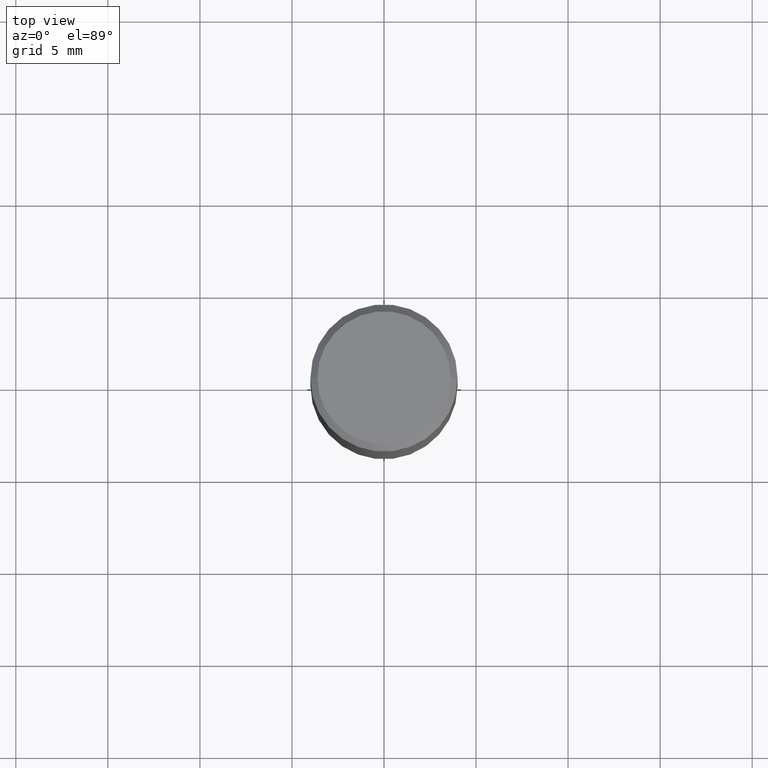
[diagram: clean part render]
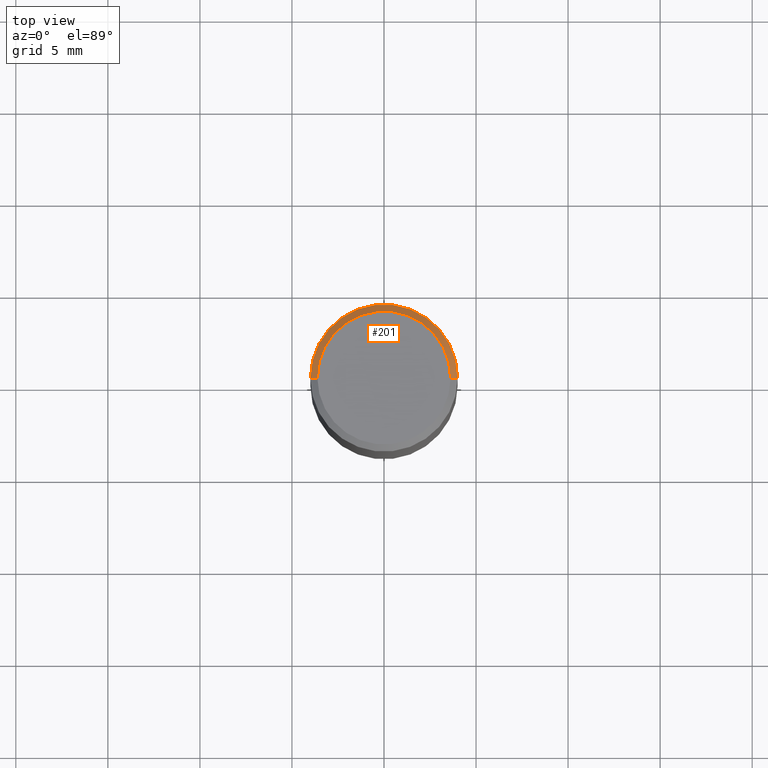
[diagram: same view with one face highlighted and labeled with its STEP entity id]
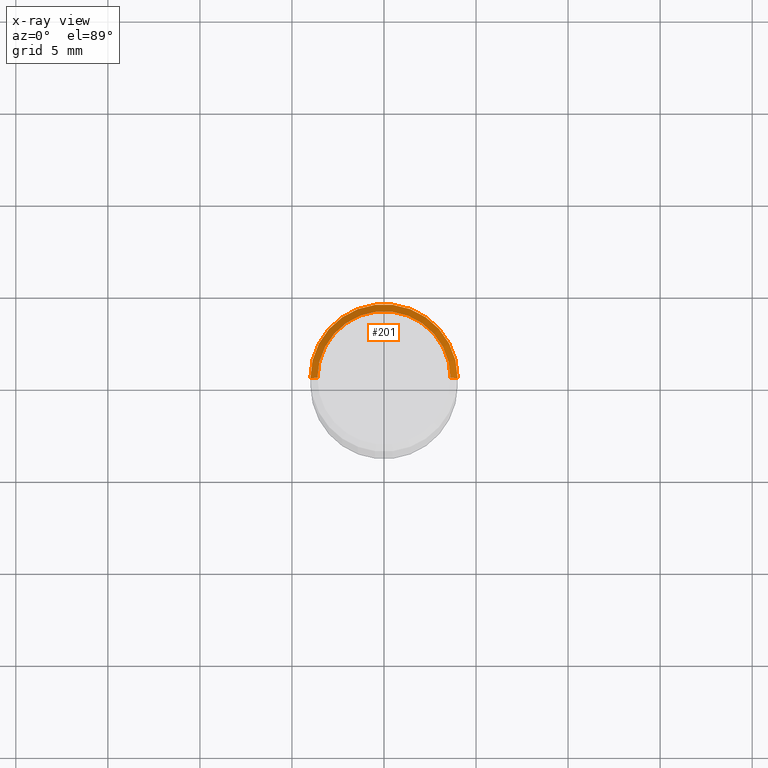
[diagram: x-ray of the same camera — body ghosted, the highlighted face saturated]
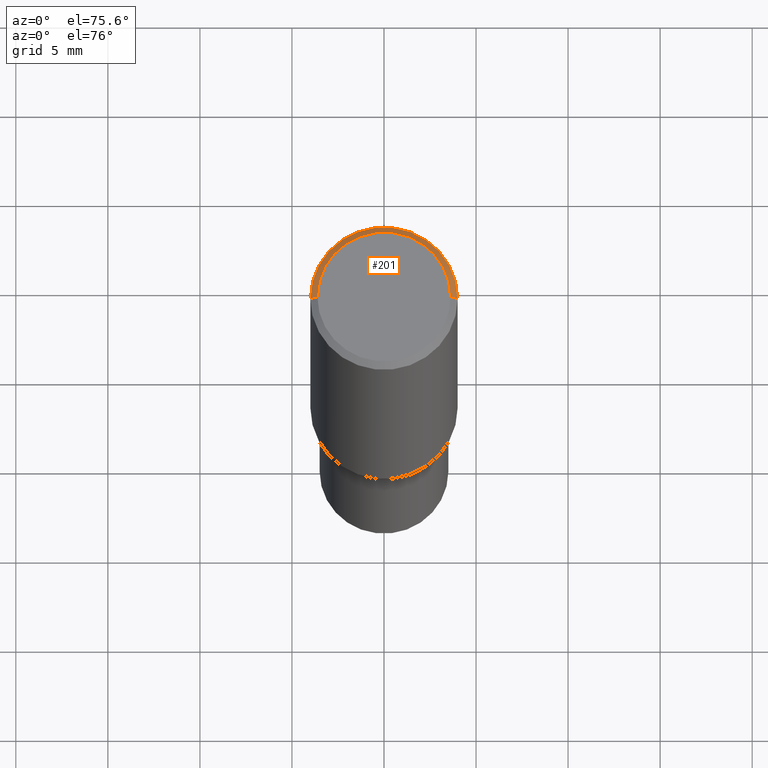
[diagram: same view with one face highlighted and labeled with its STEP entity id]
A machine part, top view. The second image highlights one B-rep face of the part: STEP entity #201.
The next image is the same camera in x-ray: the body ghosted, the highlighted face saturated — about 0% of this face is hidden behind the body in this view.
A second angle (auxiliary view) of the same face is appended — the face is thin or edge-on in the first view.
In plain terms, the highlighted conical surface has half-angle 45 deg.
Its self-contained STEP definition (entity closure, byte-faithful):
#32 = DIRECTION ( 'NONE',  ( 2.445468806185136597E-29, -3.491481338843145583E-15, -1.000000000000000000 ) ) ;
#53 = EDGE_CURVE ( 'NONE', #58, #101, #299, .T. ) ;
#58 = VERTEX_POINT ( 'NONE', #93 ) ;
#65 = CARTESIAN_POINT ( 'NONE',  ( -0.1575000000000000011, 1.047444401652939809E-15, -0.01499999999999999944 ) ) ;
#69 = DIRECTION ( 'NONE',  ( -1.000000000000000000, 6.982962677686265922E-15, 0.000000000000000000 ) ) ;
#75 = DIRECTION ( 'NONE',  ( -0.7071067811865526798, 2.468850131082310309E-15, -0.7071067811865424657 ) ) ;
#76 = DIRECTION ( 'NONE',  ( 1.000000000000000000, -6.982962677686265922E-15, 0.000000000000000000 ) ) ;
#80 = CARTESIAN_POINT ( 'NONE',  ( 0.1575000000000000011, -1.132900654731663450E-15, -0.01499999999999999944 ) ) ;
#90 = EDGE_CURVE ( 'NONE', #58, #91, #267, .T. ) ;
#91 = VERTEX_POINT ( 'NONE', #184 ) ;
#93 = CARTESIAN_POINT ( 'NONE',  ( 0.1424999999999999878, -1.055260809707053708E-15, -2.213690298435819362E-16 ) ) ;
#99 = ORIENTED_EDGE ( 'NONE', *, *, #90, .F. ) ;
#101 = VERTEX_POINT ( 'NONE', #296 ) ;
#112 = DIRECTION ( 'NONE',  ( -2.445468806185136597E-29, 3.491481338843145583E-15, 1.000000000000000000 ) ) ;
#119 = EDGE_CURVE ( 'NONE', #91, #200, #171, .T. ) ;
#145 = ORIENTED_EDGE ( 'NONE', *, *, #223, .T. ) ;
#152 = AXIS2_PLACEMENT_3D ( 'NONE', #325, #289, #153 ) ;
#153 = DIRECTION ( 'NONE',  ( 1.000000000000000000, -6.982962677686266711E-15, 4.874020801377837404E-29 ) ) ;
#164 = ORIENTED_EDGE ( 'NONE', *, *, #119, .F. ) ;
#171 = LINE ( 'NONE', #65, #180 ) ;
#180 = VECTOR ( 'NONE', #75, 39.37007874015748143 ) ;
#184 = CARTESIAN_POINT ( 'NONE',  ( -0.1424999999999999878, 1.021258291611616073E-15, -2.213690298435961110E-16 ) ) ;
#193 = CIRCLE ( 'NONE', #205, 0.1575000000000000011 ) ;
#200 = VERTEX_POINT ( 'NONE', #326 ) ;
#201 = ADVANCED_FACE ( 'NONE', ( #209 ), #348, .T. ) ;
#205 = AXIS2_PLACEMENT_3D ( 'NONE', #462, #112, #76 ) ;
#209 = FACE_OUTER_BOUND ( 'NONE', #242, .T. ) ;
#211 = VECTOR ( 'NONE', #366, 39.37007874015748143 ) ;
#223 = EDGE_CURVE ( 'NONE', #101, #200, #193, .T. ) ;
#242 = EDGE_LOOP ( 'NONE', ( #99, #322, #145, #164 ) ) ;
#252 = CARTESIAN_POINT ( 'NONE',  ( 3.668203209277705088E-31, -5.237222008264718399E-17, -0.01499999999999999944 ) ) ;
#267 = CIRCLE ( 'NONE', #152, 0.1424999999999999878 ) ;
#289 = DIRECTION ( 'NONE',  ( -2.445468806185136597E-29, 3.491481338843145583E-15, 1.000000000000000000 ) ) ;
#296 = CARTESIAN_POINT ( 'NONE',  ( 0.1575000000000000011, -1.152188841818234165E-15, -0.01499999999999999944 ) ) ;
#299 = LINE ( 'NONE', #80, #211 ) ;
#322 = ORIENTED_EDGE ( 'NONE', *, *, #53, .T. ) ;
#325 = CARTESIAN_POINT ( 'NONE',  ( 5.413510571379636467E-45, -7.729058366967026333E-31, -2.213690298435890852E-16 ) ) ;
#326 = CARTESIAN_POINT ( 'NONE',  ( -0.1575000000000000011, -5.733534097446686172E-16, -0.01499999999999999944 ) ) ;
#348 = CONICAL_SURFACE ( 'NONE', #417, 0.1575000000000000011, 0.7853981633974554954 ) ;
#366 = DIRECTION ( 'NONE',  ( 0.7071067811865526798, -7.319954787623273400E-15, -0.7071067811865424657 ) ) ;
#417 = AXIS2_PLACEMENT_3D ( 'NONE', #252, #32, #69 ) ;
#462 = CARTESIAN_POINT ( 'NONE',  ( 3.668203209277705088E-31, -5.237222008264718399E-17, -0.01499999999999999944 ) ) ;